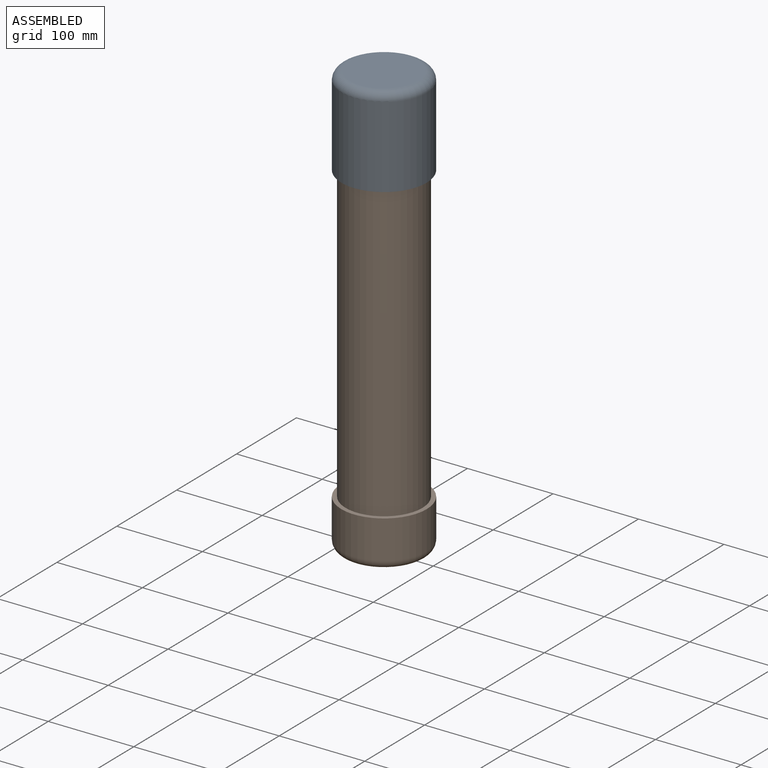
[diagram: assembled view]
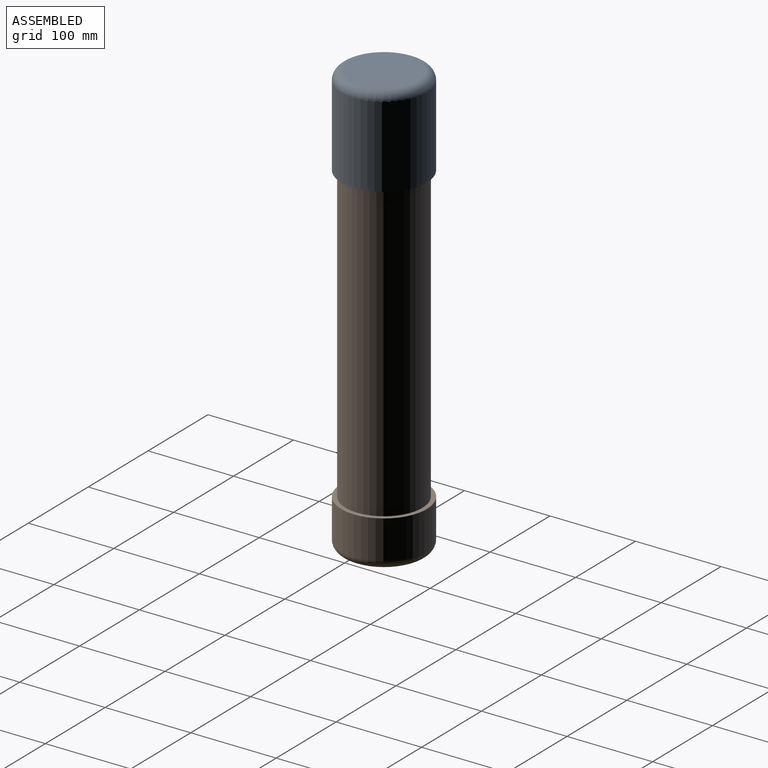
[diagram: assembled view, second angle]
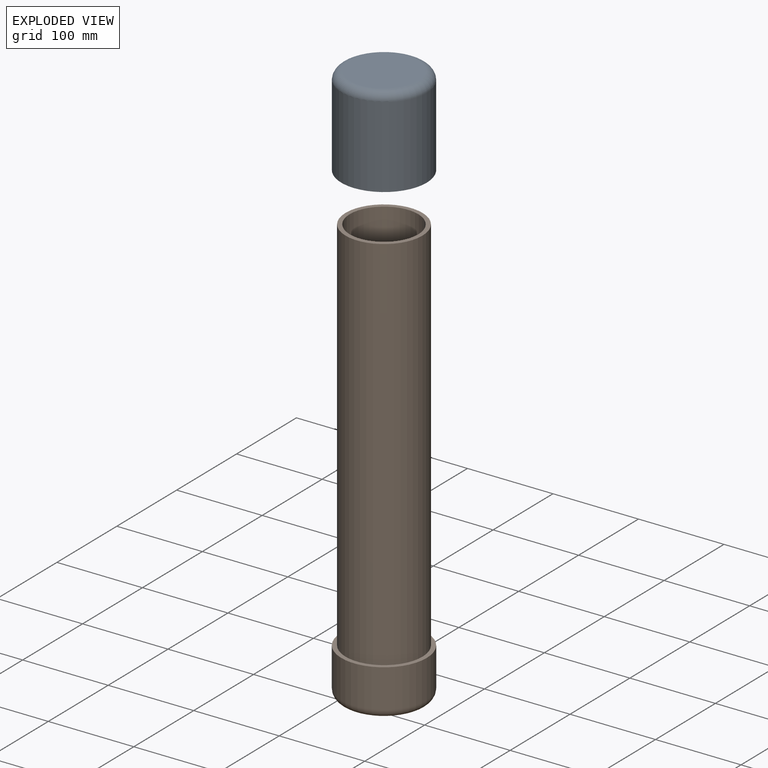
[diagram: exploded view]
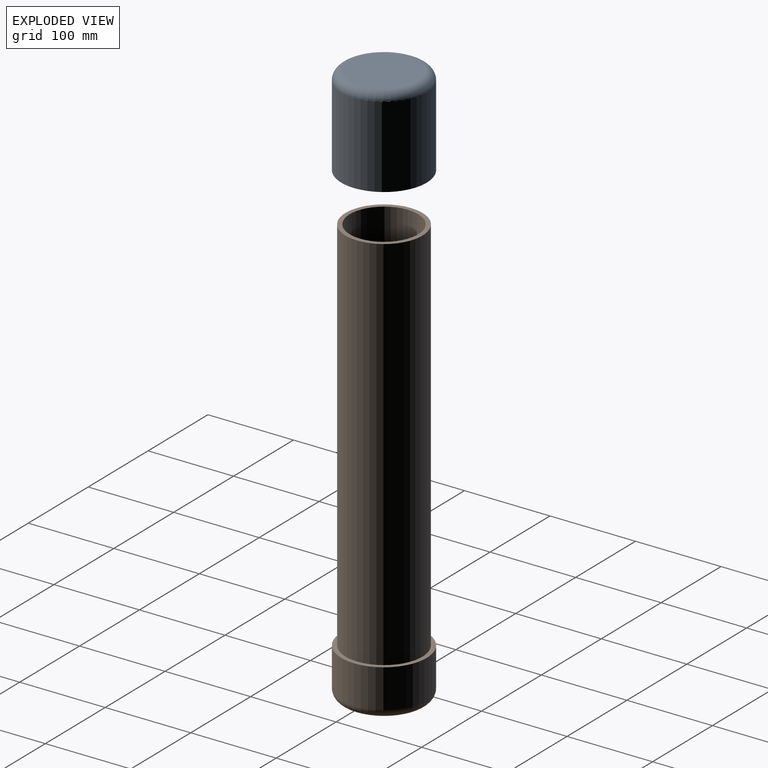
[diagram: exploded view, second angle]
ASSEMBLY  parts=2 mates=2
PART A: 8 faces, bbox 108.2x108.2x105 mm
  f0: cylinder r=40mm len=80mm, axis (0,0,-1), area 11309.7mm2, adj f1,f2
  f1: plane 90x90mm, normal (0,0,1), area 1335.2mm2, adj f0,f3
  f2: plane 80x80mm, normal (0,0,1), area 5026.5mm2, adj f0
  f3: cylinder r=45mm len=90mm, axis (0,0,-1), area 15550.9mm2, adj f1,f4
  f4: plane 100x100mm, normal (0,0,1), area 1492.3mm2, adj f3,f6
  f5: plane 80x80mm, normal (0,0,-1), area 5026.5mm2, adj f7
  f6: cylinder r=50mm len=100mm, axis (0,0,-1), area 29845.1mm2, adj f4,f7
  f7: torus R=40mm, axis (0,0,1), area 4576.2mm2, adj f5,f6
PART B: 8 faces, bbox 108.2x108.2x500 mm
  f0: cylinder r=45mm len=445mm, axis (0,0,-1), area 125820.8mm2, adj f2,f4
  f1: cylinder r=40mm len=495mm, axis (0,0,-1), area 124407.1mm2, adj f2,f3
  f2: plane 90x90mm, normal (0,0,1), area 1335.2mm2, adj f0,f1
  f3: plane 80x80mm, normal (0,0,1), area 5026.5mm2, adj f1
  f4: plane 100x100mm, normal (0,0,1), area 1492.3mm2, adj f0,f6
  f5: plane 80x80mm, normal (0,0,-1), area 5026.5mm2, adj f7
  f6: cylinder r=50mm len=100mm, axis (0,0,-1), area 14137.2mm2, adj f4,f7
  f7: torus R=40mm, axis (0,0,1), area 4576.2mm2, adj f5,f6
PLACE A rot(axis=(1,0,0),180deg) t=(441.82,315.32,168.12)mm
PLACE B rot(axis=(-0.12,-0.18,-0.98),0deg) t=(441.82,315.32,-336.88)mm
MATE slider A.f0 <-> B.f0  axis (0,0,1) through (441.82,315.32,63.12)mm
MATE slider A.f0 <-> B.f0  axis (0,0,1) through (441.82,315.32,168.12)mm
